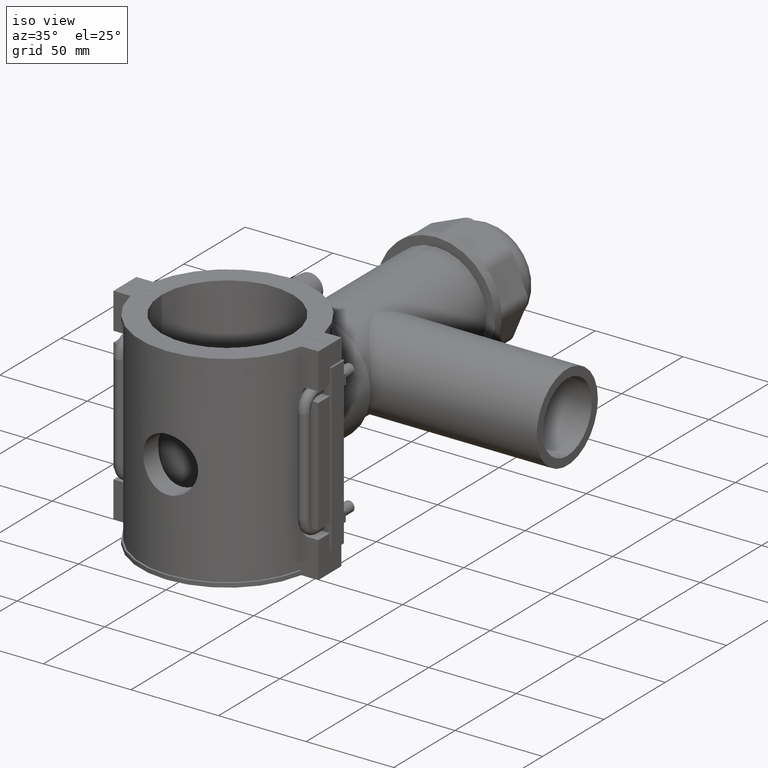
[diagram: clean part render]
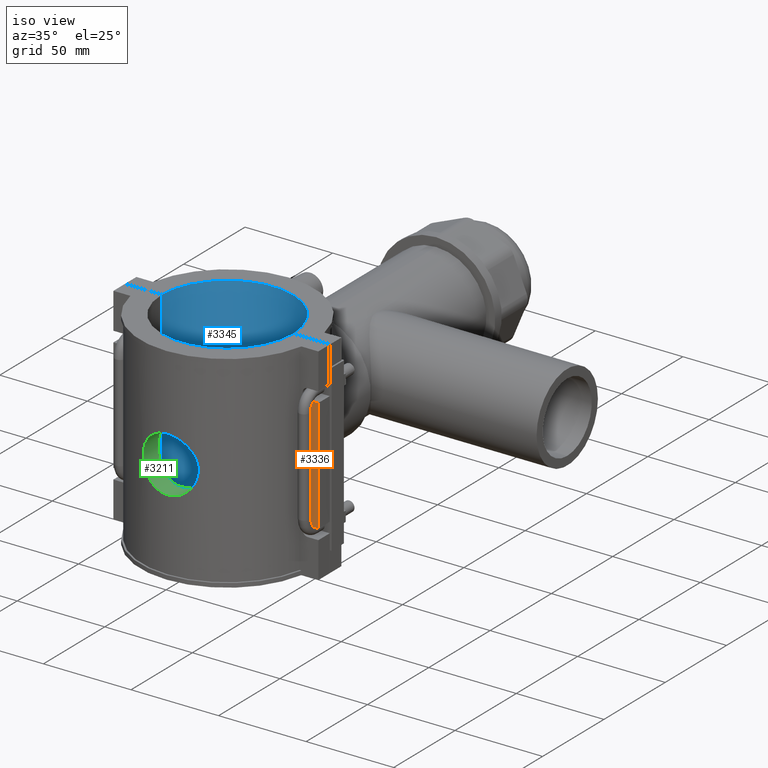
[diagram: same view with three faces highlighted in distinct colors, each labeled with its STEP entity id]
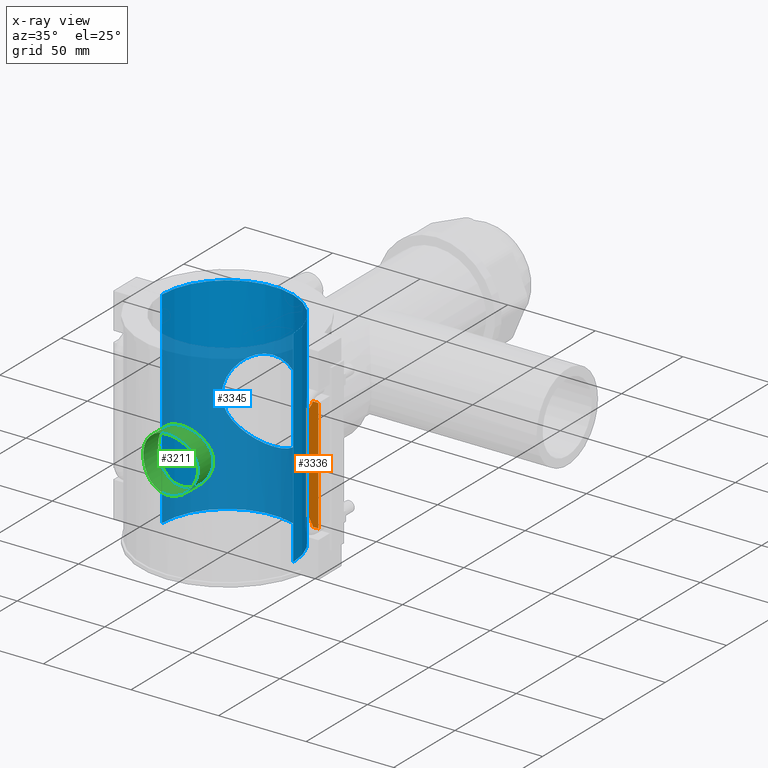
[diagram: x-ray of the same camera — body ghosted, the three highlighted faces saturated]
A machine part, iso view with three faces highlighted in distinct colors.
The next image is the same camera in x-ray (body ghosted, the three faces saturated) — at least one of them is partly hidden behind the body in this view.
Their STEP definitions:

[orange] entity #3336 — the highlighted planar face has unit normal (0, -1, 0).
#147=LINE('',#5733,#434);
#297=LINE('',#6664,#584);
#308=LINE('',#6683,#595);
#317=LINE('',#6700,#604);
#434=VECTOR('',#4054,54.7999999999999);
#584=VECTOR('',#4498,3.14744237747099);
#595=VECTOR('',#4515,3.14744237747103);
#604=VECTOR('',#4532,64.8);
#722=B_SPLINE_CURVE_WITH_KNOTS('',3,(#6567,#6568,#6569,#6570,#6571,#6572,
#6573,#6574,#6575,#6576),.UNSPECIFIED.,.F.,.F.,(4,2,2,2,4),(0.,0.205481085848634,
0.410962171697268,0.537973450419058,0.545999162035814),.UNSPECIFIED.);
#725=B_SPLINE_CURVE_WITH_KNOTS('',3,(#6611,#6612,#6613,#6614,#6615,#6616,
#6617,#6618,#6619,#6620),.UNSPECIFIED.,.F.,.F.,(4,2,2,2,4),(1.76042393439612,
1.76844964601289,1.89546092473468,2.10094201058331,2.30642309643195),
 .UNSPECIFIED.);
#956=FACE_OUTER_BOUND('',#1202,.T.);
#1202=EDGE_LOOP('',(#2950,#2951,#2952,#2953,#2954,#2955));
#1478=VERTEX_POINT('',#5719);
#1479=VERTEX_POINT('',#5732);
#1614=VERTEX_POINT('',#6556);
#1618=VERTEX_POINT('',#6610);
#1629=VERTEX_POINT('',#6663);
#1634=VERTEX_POINT('',#6681);
#1840=EDGE_CURVE('',#1479,#1478,#147,.T.);
#2046=EDGE_CURVE('',#1478,#1614,#722,.T.);
#2052=EDGE_CURVE('',#1618,#1479,#725,.T.);
#2068=EDGE_CURVE('',#1629,#1618,#297,.T.);
#2079=EDGE_CURVE('',#1614,#1634,#308,.T.);
#2088=EDGE_CURVE('',#1634,#1629,#317,.T.);
#2950=ORIENTED_EDGE('',*,*,#2046,.T.);
#2951=ORIENTED_EDGE('',*,*,#2079,.T.);
#2952=ORIENTED_EDGE('',*,*,#2088,.T.);
#2953=ORIENTED_EDGE('',*,*,#2068,.T.);
#2954=ORIENTED_EDGE('',*,*,#2052,.T.);
#2955=ORIENTED_EDGE('',*,*,#1840,.T.);
#3146=PLANE('',#3645);
#3336=ADVANCED_FACE('',(#956),#3146,.T.);
#3645=AXIS2_PLACEMENT_3D('',#6699,#4530,#4531);
#4054=DIRECTION('',(0.,0.,-1.));
#4498=DIRECTION('',(-1.,0.,0.));
#4515=DIRECTION('',(1.,0.,0.));
#4530=DIRECTION('center_axis',(0.,-1.,0.));
#4531=DIRECTION('ref_axis',(1.,0.,0.));
#4532=DIRECTION('',(0.,0.,1.));
#5719=CARTESIAN_POINT('',(52.5,-9.375,-27.4));
#5732=CARTESIAN_POINT('',(52.5,-9.375,27.3999999999999));
#5733=CARTESIAN_POINT('',(52.5,-9.375,27.3999999999999));
#6556=CARTESIAN_POINT('',(55.352557622529,-9.375,-32.4));
#6567=CARTESIAN_POINT('Ctrl Pts',(52.5,-9.375,-27.4));
#6568=CARTESIAN_POINT('Ctrl Pts',(52.9194365101018,-9.375,-27.9414902061386));
#6569=CARTESIAN_POINT('Ctrl Pts',(53.3820473191165,-9.375,-28.5365468681764));
#6570=CARTESIAN_POINT('Ctrl Pts',(54.229666362583,-9.375,-29.7738388291262));
#6571=CARTESIAN_POINT('Ctrl Pts',(54.610831203016,-9.375,-30.4187027022101));
#6572=CARTESIAN_POINT('Ctrl Pts',(55.0629019428147,-9.375,-31.430620884329));
#6573=CARTESIAN_POINT('Ctrl Pts',(55.2228163506988,-9.375,-31.8673367205852));
#6574=CARTESIAN_POINT('Ctrl Pts',(55.3392969713177,-9.375,-32.3433076247512));
#6575=CARTESIAN_POINT('Ctrl Pts',(55.346026798063,-9.375,-32.371638223965));
#6576=CARTESIAN_POINT('Ctrl Pts',(55.352557622529,-9.375,-32.4));
#6610=CARTESIAN_POINT('',(55.352557622529,-9.375,32.4));
#6611=CARTESIAN_POINT('Ctrl Pts',(55.352557622529,-9.375,32.4));
#6612=CARTESIAN_POINT('Ctrl Pts',(55.3460267980631,-9.375,32.3716382239649));
#6613=CARTESIAN_POINT('Ctrl Pts',(55.3392969713177,-9.375,32.3433076247511));
#6614=CARTESIAN_POINT('Ctrl Pts',(55.2228163506988,-9.375,31.867336720585));
#6615=CARTESIAN_POINT('Ctrl Pts',(55.0629019428147,-9.375,31.4306208843289));
#6616=CARTESIAN_POINT('Ctrl Pts',(54.610831203016,-9.375,30.41870270221));
#6617=CARTESIAN_POINT('Ctrl Pts',(54.229666362583,-9.375,29.7738388291261));
#6618=CARTESIAN_POINT('Ctrl Pts',(53.3820473191165,-9.375,28.5365468681763));
#6619=CARTESIAN_POINT('Ctrl Pts',(52.9194365101018,-9.375,27.9414902061385));
#6620=CARTESIAN_POINT('Ctrl Pts',(52.5,-9.375,27.3999999999999));
#6663=CARTESIAN_POINT('',(58.5,-9.375,32.4));
#6664=CARTESIAN_POINT('',(53.1700327915745,-9.375,32.4));
#6681=CARTESIAN_POINT('',(58.5,-9.375,-32.4));
#6683=CARTESIAN_POINT('',(50.1578654550856,-9.375,-32.4));
#6699=CARTESIAN_POINT('Origin',(47.840065583149,-9.375,0.));
#6700=CARTESIAN_POINT('',(58.5,-9.375,0.));

[blue] entity #3345 — the highlighted cylindrical surface (partial cylindrical patch) has radius 37.5 mm, axis along (0, 0, 1).
#275=LINE('',#6425,#562);
#322=LINE('',#6717,#609);
#562=VECTOR('',#4394,118.);
#609=VECTOR('',#4553,118.);
#679=FACE_BOUND('',#1215,.T.);
#680=B_SPLINE_CURVE_WITH_KNOTS('',3,(#4578,#4579,#4580,#4581,#4582,#4583,
#4584,#4585,#4586,#4587,#4588,#4589,#4590,#4591,#4592,#4593,#4594,#4595,
#4596,#4597,#4598,#4599,#4600,#4601,#4602,#4603,#4604,#4605,#4606,#4607,
#4608,#4609,#4610,#4611,#4612,#4613,#4614,#4615,#4616,#4617,#4618,#4619,
#4620,#4621,#4622,#4623,#4624,#4625,#4626,#4627,#4628,#4629,#4630,#4631,
#4632,#4633,#4634,#4635,#4636,#4637,#4638,#4639,#4640,#4641,#4642,#4643),
 .UNSPECIFIED.,.T.,.F.,(4,2,2,2,2,2,2,2,2,2,2,2,2,2,2,2,2,2,2,2,2,2,2,2,
2,2,2,2,2,2,2,2,4),(0.,0.462807746115,0.92561549223,1.388423238345,1.85123098446,
2.31023161788863,2.76923225131726,3.22823288474589,3.68723351817452,4.14623415160315,
4.60523478503178,5.06423541846041,5.52323605188905,5.98604379800405,6.44885154411905,
6.91165929023405,7.37446703634905,7.83727478246405,8.30008252857905,8.76289027469405,
9.22569802080905,9.68469865423768,10.1436992876663,10.6026999210949,11.0617005545236,
11.5207011879522,11.9797018213808,12.4387024548095,12.8977030882381,13.3605108343531,
13.8233185804681,14.2861263265831,14.7489340726981),.UNSPECIFIED.);
#775=CYLINDRICAL_SURFACE('',#3656,37.5);
#965=FACE_OUTER_BOUND('',#1214,.T.);
#1214=EDGE_LOOP('',(#3017,#3018,#3019,#3020));
#1215=EDGE_LOOP('',(#3021));
#1332=CIRCLE('',#3657,37.5);
#1333=CIRCLE('',#3658,37.5);
#1335=VERTEX_POINT('',#4577);
#1599=VERTEX_POINT('',#6422);
#1600=VERTEX_POINT('',#6424);
#1641=VERTEX_POINT('',#6714);
#1642=VERTEX_POINT('',#6716);
#1645=EDGE_CURVE('',#1335,#1335,#680,.T.);
#2021=EDGE_CURVE('',#1600,#1599,#275,.T.);
#2095=EDGE_CURVE('',#1642,#1641,#322,.T.);
#2100=EDGE_CURVE('',#1600,#1641,#1332,.T.);
#2101=EDGE_CURVE('',#1642,#1599,#1333,.T.);
#3017=ORIENTED_EDGE('',*,*,#2095,.T.);
#3018=ORIENTED_EDGE('',*,*,#2100,.F.);
#3019=ORIENTED_EDGE('',*,*,#2021,.T.);
#3020=ORIENTED_EDGE('',*,*,#2101,.F.);
#3021=ORIENTED_EDGE('',*,*,#1645,.T.);
#3345=ADVANCED_FACE('',(#965,#679),#775,.F.);
#3656=AXIS2_PLACEMENT_3D('',#6725,#4562,#4563);
#3657=AXIS2_PLACEMENT_3D('',#6726,#4564,#4565);
#3658=AXIS2_PLACEMENT_3D('',#6727,#4566,#4567);
#4394=DIRECTION('',(0.,0.,-1.));
#4553=DIRECTION('',(0.,0.,1.));
#4562=DIRECTION('center_axis',(0.,0.,1.));
#4563=DIRECTION('ref_axis',(-1.,0.,0.));
#4564=DIRECTION('center_axis',(0.,0.,-1.));
#4565=DIRECTION('ref_axis',(-1.,0.,0.));
#4566=DIRECTION('center_axis',(0.,0.,1.));
#4567=DIRECTION('ref_axis',(-1.,0.,0.));
#4577=CARTESIAN_POINT('',(-23.625,29.1223174730309,4.08006961549745E-14));
#4578=CARTESIAN_POINT('Ctrl Pts',(-23.625,29.1223174730309,4.08006961549745E-14));
#4579=CARTESIAN_POINT('Ctrl Pts',(-23.625,29.1223174730309,1.54269248705004));
#4580=CARTESIAN_POINT('Ctrl Pts',(-23.4717219223198,29.2486649775297,3.11474441862054));
#4581=CARTESIAN_POINT('Ctrl Pts',(-22.8501952187458,29.7367568856414,6.20418751461353));
#4582=CARTESIAN_POINT('Ctrl Pts',(-22.3822954963763,30.0971774261606,7.72185786580885));
#4583=CARTESIAN_POINT('Ctrl Pts',(-21.1668688353657,30.9640237249437,10.6093392039413));
#4584=CARTESIAN_POINT('Ctrl Pts',(-20.418336007456,31.4698730482701,11.9821958090445));
#4585=CARTESIAN_POINT('Ctrl Pts',(-18.7023056718838,32.518996254107,14.515688910244));
#4586=CARTESIAN_POINT('Ctrl Pts',(-17.7344122510781,33.0614828960146,15.6763831599863));
#4587=CARTESIAN_POINT('Ctrl Pts',(-15.6848479585202,34.0812988190438,17.7259474525442));
#4588=CARTESIAN_POINT('Ctrl Pts',(-14.5286064378956,34.5977594715381,18.6923731499932));
#4589=CARTESIAN_POINT('Ctrl Pts',(-11.9941746252867,35.5559438139942,20.4113937360051));
#4590=CARTESIAN_POINT('Ctrl Pts',(-10.6158403661594,35.9970796214786,21.1641039983853));
#4591=CARTESIAN_POINT('Ctrl Pts',(-7.71602207516126,36.728038593843,22.3847802517598));
#4592=CARTESIAN_POINT('Ctrl Pts',(-6.19152597756031,37.0181562344169,22.8537397635211));
#4593=CARTESIAN_POINT('Ctrl Pts',(-3.09855457541638,37.4042490164161,23.4739722814225));
#4594=CARTESIAN_POINT('Ctrl Pts',(-1.53000211142877,37.5,23.625));
#4595=CARTESIAN_POINT('Ctrl Pts',(1.53000211142876,37.5,23.625));
#4596=CARTESIAN_POINT('Ctrl Pts',(3.09855457541637,37.4042490164161,23.4739722814225));
#4597=CARTESIAN_POINT('Ctrl Pts',(6.19152597756031,37.0181562344169,22.8537397635211));
#4598=CARTESIAN_POINT('Ctrl Pts',(7.71602207516126,36.7280385938431,22.3847802517598));
#4599=CARTESIAN_POINT('Ctrl Pts',(10.6158403661594,35.9970796214786,21.1641039983853));
#4600=CARTESIAN_POINT('Ctrl Pts',(11.9941746252867,35.5559438139942,20.4113937360051));
#4601=CARTESIAN_POINT('Ctrl Pts',(14.5286064378956,34.5977594715381,18.6923731499932));
#4602=CARTESIAN_POINT('Ctrl Pts',(15.6848479585202,34.0812988190438,17.7259474525442));
#4603=CARTESIAN_POINT('Ctrl Pts',(17.7344122510781,33.0614828960146,15.6763831599863));
#4604=CARTESIAN_POINT('Ctrl Pts',(18.7023056718837,32.518996254107,14.515688910244));
#4605=CARTESIAN_POINT('Ctrl Pts',(20.418336007456,31.4698730482701,11.9821958090445));
#4606=CARTESIAN_POINT('Ctrl Pts',(21.1668688353657,30.9640237249437,10.6093392039413));
#4607=CARTESIAN_POINT('Ctrl Pts',(22.3822954963763,30.0971774261606,7.72185786580886));
#4608=CARTESIAN_POINT('Ctrl Pts',(22.8501952187458,29.7367568856414,6.20418751461354));
#4609=CARTESIAN_POINT('Ctrl Pts',(23.4717219223198,29.2486649775297,3.11474441862055));
#4610=CARTESIAN_POINT('Ctrl Pts',(23.625,29.1223174730309,1.54269248705004));
#4611=CARTESIAN_POINT('Ctrl Pts',(23.625,29.1223174730309,-1.54269248704996));
#4612=CARTESIAN_POINT('Ctrl Pts',(23.4717219223198,29.2486649775297,-3.11474441862046));
#4613=CARTESIAN_POINT('Ctrl Pts',(22.8501952187458,29.7367568856414,-6.20418751461344));
#4614=CARTESIAN_POINT('Ctrl Pts',(22.3822954963763,30.0971774261606,-7.72185786580876));
#4615=CARTESIAN_POINT('Ctrl Pts',(21.1668688353657,30.9640237249437,-10.6093392039412));
#4616=CARTESIAN_POINT('Ctrl Pts',(20.4183360074561,31.4698730482701,-11.9821958090444));
#4617=CARTESIAN_POINT('Ctrl Pts',(18.7023056718838,32.518996254107,-14.5156889102439));
#4618=CARTESIAN_POINT('Ctrl Pts',(17.7344122510781,33.0614828960146,-15.6763831599862));
#4619=CARTESIAN_POINT('Ctrl Pts',(15.6848479585202,34.0812988190438,-17.7259474525441));
#4620=CARTESIAN_POINT('Ctrl Pts',(14.5286064378956,34.5977594715381,-18.6923731499931));
#4621=CARTESIAN_POINT('Ctrl Pts',(11.9941746252867,35.5559438139942,-20.4113937360051));
#4622=CARTESIAN_POINT('Ctrl Pts',(10.6158403661594,35.9970796214786,-21.1641039983852));
#4623=CARTESIAN_POINT('Ctrl Pts',(7.71602207516126,36.728038593843,-22.3847802517597));
#4624=CARTESIAN_POINT('Ctrl Pts',(6.19152597756031,37.0181562344169,-22.853739763521));
#4625=CARTESIAN_POINT('Ctrl Pts',(3.09855457541638,37.4042490164161,-23.4739722814224));
#4626=CARTESIAN_POINT('Ctrl Pts',(1.53000211142877,37.5,-23.6249999999999));
#4627=CARTESIAN_POINT('Ctrl Pts',(-1.53000211142876,37.5,-23.6249999999999));
#4628=CARTESIAN_POINT('Ctrl Pts',(-3.09855457541636,37.4042490164161,-23.4739722814224));
#4629=CARTESIAN_POINT('Ctrl Pts',(-6.19152597756029,37.0181562344169,-22.853739763521));
#4630=CARTESIAN_POINT('Ctrl Pts',(-7.71602207516124,36.7280385938431,-22.3847802517597));
#4631=CARTESIAN_POINT('Ctrl Pts',(-10.6158403661593,35.9970796214786,-21.1641039983853));
#4632=CARTESIAN_POINT('Ctrl Pts',(-11.9941746252867,35.5559438139942,-20.4113937360051));
#4633=CARTESIAN_POINT('Ctrl Pts',(-14.5286064378956,34.5977594715381,-18.6923731499931));
#4634=CARTESIAN_POINT('Ctrl Pts',(-15.6848479585202,34.0812988190438,-17.7259474525441));
#4635=CARTESIAN_POINT('Ctrl Pts',(-17.7344122510781,33.0614828960146,-15.6763831599862));
#4636=CARTESIAN_POINT('Ctrl Pts',(-18.7023056718837,32.518996254107,-14.5156889102439));
#4637=CARTESIAN_POINT('Ctrl Pts',(-20.418336007456,31.4698730482701,-11.9821958090444));
#4638=CARTESIAN_POINT('Ctrl Pts',(-21.1668688353657,30.9640237249438,-10.6093392039412));
#4639=CARTESIAN_POINT('Ctrl Pts',(-22.3822954963763,30.0971774261606,-7.72185786580877));
#4640=CARTESIAN_POINT('Ctrl Pts',(-22.8501952187458,29.7367568856414,-6.20418751461345));
#4641=CARTESIAN_POINT('Ctrl Pts',(-23.4717219223198,29.2486649775297,-3.11474441862046));
#4642=CARTESIAN_POINT('Ctrl Pts',(-23.625,29.1223174730309,-1.54269248704996));
#4643=CARTESIAN_POINT('Ctrl Pts',(-23.625,29.1223174730309,4.16333634234434E-14));
#6422=CARTESIAN_POINT('',(-37.4999666666519,0.0500000000000078,-59.));
#6424=CARTESIAN_POINT('',(-37.4999666666519,0.0500000000000078,59.));
#6425=CARTESIAN_POINT('',(-37.4999666666519,0.0500000000000078,0.));
#6714=CARTESIAN_POINT('',(37.4999666666519,0.0500000000000078,59.));
#6716=CARTESIAN_POINT('',(37.4999666666519,0.0500000000000078,-59.));
#6717=CARTESIAN_POINT('',(37.4999666666519,0.0500000000000078,0.));
#6725=CARTESIAN_POINT('Origin',(0.,0.,0.));
#6726=CARTESIAN_POINT('Origin',(0.,0.,59.));
#6727=CARTESIAN_POINT('Origin',(0.,0.,-59.));

[green] entity #3211 — the highlighted cylindrical surface (bore or boss wall) has radius 15.68 mm, axis along (0, -1, 0).
#637=FACE_BOUND('',#1039,.T.);
#684=B_SPLINE_CURVE_WITH_KNOTS('',3,(#5088,#5089,#5090,#5091,#5092,#5093,
#5094,#5095,#5096,#5097,#5098,#5099,#5100,#5101,#5102,#5103,#5104,#5105,
#5106,#5107,#5108,#5109,#5110,#5111,#5112,#5113,#5114,#5115,#5116,#5117,
#5118,#5119,#5120,#5121,#5122,#5123,#5124,#5125,#5126,#5127,#5128,#5129,
#5130,#5131,#5132,#5133,#5134,#5135,#5136,#5137,#5138,#5139,#5140,#5141,
#5142,#5143,#5144,#5145),.UNSPECIFIED.,.T.,.F.,(4,2,2,2,2,2,2,2,2,2,2,2,
2,2,2,2,2,2,2,2,2,2,2,2,2,2,2,2,4),(0.,0.297681569880699,0.595363139761398,
1.1907262795228,1.48828908378426,1.78585188804573,2.0834146923072,2.38097749656866,
2.67854030083013,2.9761031050916,3.27366590935306,3.57122871361453,4.16659185337593,
4.46427342325663,4.76195499313733,5.05963656301803,5.35731813289873,5.95268127266012,
6.25024407692159,6.54780688118306,6.84536968544452,7.14293248970599,7.44049529396746,
7.73805809822892,8.03562090249039,8.33318370675186,8.92854684651326,9.22622841639395,
9.52390998627465),.UNSPECIFIED.);
#685=B_SPLINE_CURVE_WITH_KNOTS('',3,(#5147,#5148,#5149,#5150,#5151,#5152,
#5153,#5154,#5155,#5156,#5157,#5158,#5159,#5160,#5161,#5162,#5163,#5164,
#5165,#5166,#5167,#5168,#5169,#5170,#5171,#5172,#5173,#5174,#5175,#5176,
#5177,#5178,#5179,#5180,#5181,#5182,#5183,#5184,#5185,#5186,#5187,#5188,
#5189,#5190,#5191,#5192,#5193,#5194,#5195,#5196),.UNSPECIFIED.,.T.,.F.,
(4,2,2,2,2,2,2,2,2,2,2,2,2,2,2,2,2,2,2,2,2,2,2,2,4),(0.,0.299547254524764,
0.599094509049529,1.19818901809906,1.79654837512729,2.09572805364141,2.39490773215552,
2.69408741066964,2.99326708918376,3.59162644621199,4.19072095526152,4.49026820978628,
4.78981546431105,5.08936271883581,5.38890997336058,5.98800448241011,6.58636383943834,
6.88554351795246,7.18472319646657,7.48390287498069,7.78308255349481,8.38144191052304,
8.98053641957257,9.28008367409733,9.5796309286221),.UNSPECIFIED.);
#742=CYLINDRICAL_SURFACE('',#3456,15.68);
#831=FACE_OUTER_BOUND('',#1038,.T.);
#1038=EDGE_LOOP('',(#2338));
#1039=EDGE_LOOP('',(#2339));
#1413=VERTEX_POINT('',#5087);
#1414=VERTEX_POINT('',#5146);
#1763=EDGE_CURVE('',#1413,#1413,#684,.T.);
#1764=EDGE_CURVE('',#1414,#1414,#685,.T.);
#2338=ORIENTED_EDGE('',*,*,#1763,.F.);
#2339=ORIENTED_EDGE('',*,*,#1764,.F.);
#3211=ADVANCED_FACE('',(#831,#637),#742,.F.);
#3456=AXIS2_PLACEMENT_3D('',#5086,#3939,#3940);
#3939=DIRECTION('center_axis',(0.,-1.,0.));
#3940=DIRECTION('ref_axis',(1.,0.,0.));
#5086=CARTESIAN_POINT('Origin',(0.,0.,0.));
#5087=CARTESIAN_POINT('',(15.68,-46.1595071464157,2.77555756156289E-16));
#5088=CARTESIAN_POINT('Ctrl Pts',(15.68,-46.1595071464157,2.77555756156289E-16));
#5089=CARTESIAN_POINT('Ctrl Pts',(15.68,-46.1595071464157,-0.99227189960233));
#5090=CARTESIAN_POINT('Ctrl Pts',(15.5842935405567,-46.1923889652067,-2.01595492010281));
#5091=CARTESIAN_POINT('Ctrl Pts',(15.183935965464,-46.3255339095792,-4.04751381197084));
#5092=CARTESIAN_POINT('Ctrl Pts',(14.8793980157976,-46.4256659242084,-5.05542057384396));
#5093=CARTESIAN_POINT('Ctrl Pts',(13.6761336257904,-46.7999101283691,-7.9492941136592));
#5094=CARTESIAN_POINT('Ctrl Pts',(12.4719648587682,-47.1490623646406,-9.70290379924189));
#5095=CARTESIAN_POINT('Ctrl Pts',(10.3954452562737,-47.6340444123171,-11.7794234017365));
#5096=CARTESIAN_POINT('Ctrl Pts',(9.61334211821111,-47.8006009472574,-12.4299252904814));
#5097=CARTESIAN_POINT('Ctrl Pts',(7.90801523521285,-48.1121304104389,-13.5787585765199));
#5098=CARTESIAN_POINT('Ctrl Pts',(6.98479635704538,-48.2568174339858,-14.0771747075443));
#5099=CARTESIAN_POINT('Ctrl Pts',(5.05513935592339,-48.4969419143082,-14.8795092881687));
#5100=CARTESIAN_POINT('Ctrl Pts',(4.0470360245561,-48.5923849255554,-15.1840649296733));
#5101=CARTESIAN_POINT('Ctrl Pts',(2.01541754302038,-48.7189538625889,-15.5843646165512));
#5102=CARTESIAN_POINT('Ctrl Pts',(0.99187601420489,-48.75,-15.68));
#5103=CARTESIAN_POINT('Ctrl Pts',(-0.991876014204889,-48.75,-15.68));
#5104=CARTESIAN_POINT('Ctrl Pts',(-2.01541754302038,-48.7189538625889,-15.5843646165512));
#5105=CARTESIAN_POINT('Ctrl Pts',(-4.0470360245561,-48.5923849255554,-15.1840649296733));
#5106=CARTESIAN_POINT('Ctrl Pts',(-5.05513935592338,-48.4969419143082,-14.8795092881687));
#5107=CARTESIAN_POINT('Ctrl Pts',(-6.98479635704537,-48.2568174339858,-14.0771747075443));
#5108=CARTESIAN_POINT('Ctrl Pts',(-7.90801523521284,-48.1121304104389,-13.5787585765199));
#5109=CARTESIAN_POINT('Ctrl Pts',(-9.6133421182111,-47.8006009472574,-12.4299252904814));
#5110=CARTESIAN_POINT('Ctrl Pts',(-10.3954452562737,-47.6340444123171,-11.7794234017365));
#5111=CARTESIAN_POINT('Ctrl Pts',(-12.4719648587682,-47.1490623646406,-9.70290379924189));
#5112=CARTESIAN_POINT('Ctrl Pts',(-13.6761336257904,-46.7999101283691,-7.94929411365921));
#5113=CARTESIAN_POINT('Ctrl Pts',(-14.8793980157976,-46.4256659242084,-5.05542057384396));
#5114=CARTESIAN_POINT('Ctrl Pts',(-15.183935965464,-46.3255339095792,-4.04751381197085));
#5115=CARTESIAN_POINT('Ctrl Pts',(-15.5842935405567,-46.1923889652067,-2.01595492010282));
#5116=CARTESIAN_POINT('Ctrl Pts',(-15.68,-46.1595071464157,-0.992271899602333));
#5117=CARTESIAN_POINT('Ctrl Pts',(-15.68,-46.1595071464157,0.99227189960233));
#5118=CARTESIAN_POINT('Ctrl Pts',(-15.5842935405567,-46.1923889652067,2.01595492010281));
#5119=CARTESIAN_POINT('Ctrl Pts',(-15.183935965464,-46.3255339095792,4.04751381197084));
#5120=CARTESIAN_POINT('Ctrl Pts',(-14.8793980157976,-46.4256659242084,5.05542057384396));
#5121=CARTESIAN_POINT('Ctrl Pts',(-13.6761336257904,-46.7999101283691,7.9492941136592));
#5122=CARTESIAN_POINT('Ctrl Pts',(-12.4719648587682,-47.1490623646406,9.70290379924189));
#5123=CARTESIAN_POINT('Ctrl Pts',(-10.3954452562737,-47.6340444123171,11.7794234017365));
#5124=CARTESIAN_POINT('Ctrl Pts',(-9.61334211821111,-47.8006009472574,12.4299252904814));
#5125=CARTESIAN_POINT('Ctrl Pts',(-7.90801523521285,-48.1121304104389,13.5787585765199));
#5126=CARTESIAN_POINT('Ctrl Pts',(-6.98479635704538,-48.2568174339858,14.0771747075443));
#5127=CARTESIAN_POINT('Ctrl Pts',(-5.05513935592339,-48.4969419143082,14.8795092881687));
#5128=CARTESIAN_POINT('Ctrl Pts',(-4.0470360245561,-48.5923849255554,15.1840649296733));
#5129=CARTESIAN_POINT('Ctrl Pts',(-2.01541754302038,-48.7189538625889,15.5843646165512));
#5130=CARTESIAN_POINT('Ctrl Pts',(-0.991876014204891,-48.75,15.68));
#5131=CARTESIAN_POINT('Ctrl Pts',(0.991876014204886,-48.75,15.68));
#5132=CARTESIAN_POINT('Ctrl Pts',(2.01541754302038,-48.7189538625889,15.5843646165512));
#5133=CARTESIAN_POINT('Ctrl Pts',(4.0470360245561,-48.5923849255554,15.1840649296733));
#5134=CARTESIAN_POINT('Ctrl Pts',(5.05513935592338,-48.4969419143082,14.8795092881687));
#5135=CARTESIAN_POINT('Ctrl Pts',(6.98479635704537,-48.2568174339858,14.0771747075443));
#5136=CARTESIAN_POINT('Ctrl Pts',(7.90801523521284,-48.1121304104389,13.5787585765199));
#5137=CARTESIAN_POINT('Ctrl Pts',(9.6133421182111,-47.8006009472574,12.4299252904814));
#5138=CARTESIAN_POINT('Ctrl Pts',(10.3954452562737,-47.6340444123171,11.7794234017365));
#5139=CARTESIAN_POINT('Ctrl Pts',(12.4719648587682,-47.1490623646406,9.70290379924189));
#5140=CARTESIAN_POINT('Ctrl Pts',(13.6761336257904,-46.7999101283691,7.9492941136592));
#5141=CARTESIAN_POINT('Ctrl Pts',(14.8793980157976,-46.4256659242084,5.05542057384396));
#5142=CARTESIAN_POINT('Ctrl Pts',(15.183935965464,-46.3255339095792,4.04751381197085));
#5143=CARTESIAN_POINT('Ctrl Pts',(15.5842935405567,-46.1923889652067,2.01595492010282));
#5144=CARTESIAN_POINT('Ctrl Pts',(15.68,-46.1595071464157,0.992271899602332));
#5145=CARTESIAN_POINT('Ctrl Pts',(15.68,-46.1595071464157,-5.55111512312578E-16));
#5146=CARTESIAN_POINT('',(15.68,-34.0644624205344,2.77555756156289E-16));
#5147=CARTESIAN_POINT('Ctrl Pts',(15.68,-34.0644624205344,2.77555756156289E-16));
#5148=CARTESIAN_POINT('Ctrl Pts',(15.68,-34.0644624205344,0.998490848415882));
#5149=CARTESIAN_POINT('Ctrl Pts',(15.5831011624236,-34.1096141683476,2.02643798632721));
#5150=CARTESIAN_POINT('Ctrl Pts',(15.1800789465681,-34.290873765451,4.0625972066846));
#5151=CARTESIAN_POINT('Ctrl Pts',(14.8740929602538,-34.426748854588,5.07085719461247));
#5152=CARTESIAN_POINT('Ctrl Pts',(13.6687982971368,-34.9309687655682,7.96151961593171));
#5153=CARTESIAN_POINT('Ctrl Pts',(12.4668654938752,-35.3965022327982,9.70800316413492));
#5154=CARTESIAN_POINT('Ctrl Pts',(9.70969587136855,-36.2498523789565,12.4651727866416));
#5155=CARTESIAN_POINT('Ctrl Pts',(7.96258238703524,-36.69693022547,13.6683829729896));
#5156=CARTESIAN_POINT('Ctrl Pts',(5.07004604558383,-37.1685214245768,14.8744172709557));
#5157=CARTESIAN_POINT('Ctrl Pts',(4.06116752603988,-37.2934376871613,15.1804675677752));
#5158=CARTESIAN_POINT('Ctrl Pts',(2.02479372190801,-37.459228323413,15.58332081546));
#5159=CARTESIAN_POINT('Ctrl Pts',(0.997265595047056,-37.5,15.68));
#5160=CARTESIAN_POINT('Ctrl Pts',(-0.997265595047054,-37.5,15.68));
#5161=CARTESIAN_POINT('Ctrl Pts',(-2.02479372190801,-37.459228323413,15.58332081546));
#5162=CARTESIAN_POINT('Ctrl Pts',(-4.06116752603988,-37.2934376871613,15.1804675677752));
#5163=CARTESIAN_POINT('Ctrl Pts',(-5.07004604558383,-37.1685214245768,14.8744172709557));
#5164=CARTESIAN_POINT('Ctrl Pts',(-7.96258238703524,-36.69693022547,13.6683829729896));
#5165=CARTESIAN_POINT('Ctrl Pts',(-9.70969587136855,-36.2498523789565,12.4651727866416));
#5166=CARTESIAN_POINT('Ctrl Pts',(-12.4668654938752,-35.3965022327982,9.70800316413493));
#5167=CARTESIAN_POINT('Ctrl Pts',(-13.6687982971368,-34.9309687655682,7.96151961593172));
#5168=CARTESIAN_POINT('Ctrl Pts',(-14.8740929602538,-34.426748854588,5.07085719461248));
#5169=CARTESIAN_POINT('Ctrl Pts',(-15.1800789465681,-34.290873765451,4.0625972066846));
#5170=CARTESIAN_POINT('Ctrl Pts',(-15.5831011624236,-34.1096141683476,2.02643798632721));
#5171=CARTESIAN_POINT('Ctrl Pts',(-15.68,-34.0644624205344,0.998490848415884));
#5172=CARTESIAN_POINT('Ctrl Pts',(-15.68,-34.0644624205344,-0.998490848415884));
#5173=CARTESIAN_POINT('Ctrl Pts',(-15.5831011624236,-34.1096141683476,-2.02643798632721));
#5174=CARTESIAN_POINT('Ctrl Pts',(-15.1800789465681,-34.290873765451,-4.0625972066846));
#5175=CARTESIAN_POINT('Ctrl Pts',(-14.8740929602538,-34.426748854588,-5.07085719461248));
#5176=CARTESIAN_POINT('Ctrl Pts',(-13.6687982971368,-34.9309687655682,-7.96151961593172));
#5177=CARTESIAN_POINT('Ctrl Pts',(-12.4668654938752,-35.3965022327982,-9.70800316413492));
#5178=CARTESIAN_POINT('Ctrl Pts',(-9.70969587136855,-36.2498523789565,-12.4651727866416));
#5179=CARTESIAN_POINT('Ctrl Pts',(-7.96258238703525,-36.69693022547,-13.6683829729896));
#5180=CARTESIAN_POINT('Ctrl Pts',(-5.07004604558384,-37.1685214245768,-14.8744172709557));
#5181=CARTESIAN_POINT('Ctrl Pts',(-4.06116752603988,-37.2934376871613,-15.1804675677752));
#5182=CARTESIAN_POINT('Ctrl Pts',(-2.02479372190801,-37.459228323413,-15.58332081546));
#5183=CARTESIAN_POINT('Ctrl Pts',(-0.997265595047058,-37.5,-15.68));
#5184=CARTESIAN_POINT('Ctrl Pts',(0.997265595047053,-37.5,-15.68));
#5185=CARTESIAN_POINT('Ctrl Pts',(2.02479372190801,-37.459228323413,-15.58332081546));
#5186=CARTESIAN_POINT('Ctrl Pts',(4.06116752603988,-37.2934376871613,-15.1804675677752));
#5187=CARTESIAN_POINT('Ctrl Pts',(5.07004604558383,-37.1685214245768,-14.8744172709557));
#5188=CARTESIAN_POINT('Ctrl Pts',(7.96258238703524,-36.69693022547,-13.6683829729896));
#5189=CARTESIAN_POINT('Ctrl Pts',(9.70969587136855,-36.2498523789565,-12.4651727866416));
#5190=CARTESIAN_POINT('Ctrl Pts',(12.4668654938752,-35.3965022327982,-9.70800316413492));
#5191=CARTESIAN_POINT('Ctrl Pts',(13.6687982971368,-34.9309687655682,-7.96151961593171));
#5192=CARTESIAN_POINT('Ctrl Pts',(14.8740929602538,-34.426748854588,-5.07085719461247));
#5193=CARTESIAN_POINT('Ctrl Pts',(15.1800789465681,-34.290873765451,-4.06259720668459));
#5194=CARTESIAN_POINT('Ctrl Pts',(15.5831011624236,-34.1096141683476,-2.02643798632721));
#5195=CARTESIAN_POINT('Ctrl Pts',(15.68,-34.0644624205344,-0.99849084841588));
#5196=CARTESIAN_POINT('Ctrl Pts',(15.68,-34.0644624205344,5.55111512312578E-16));